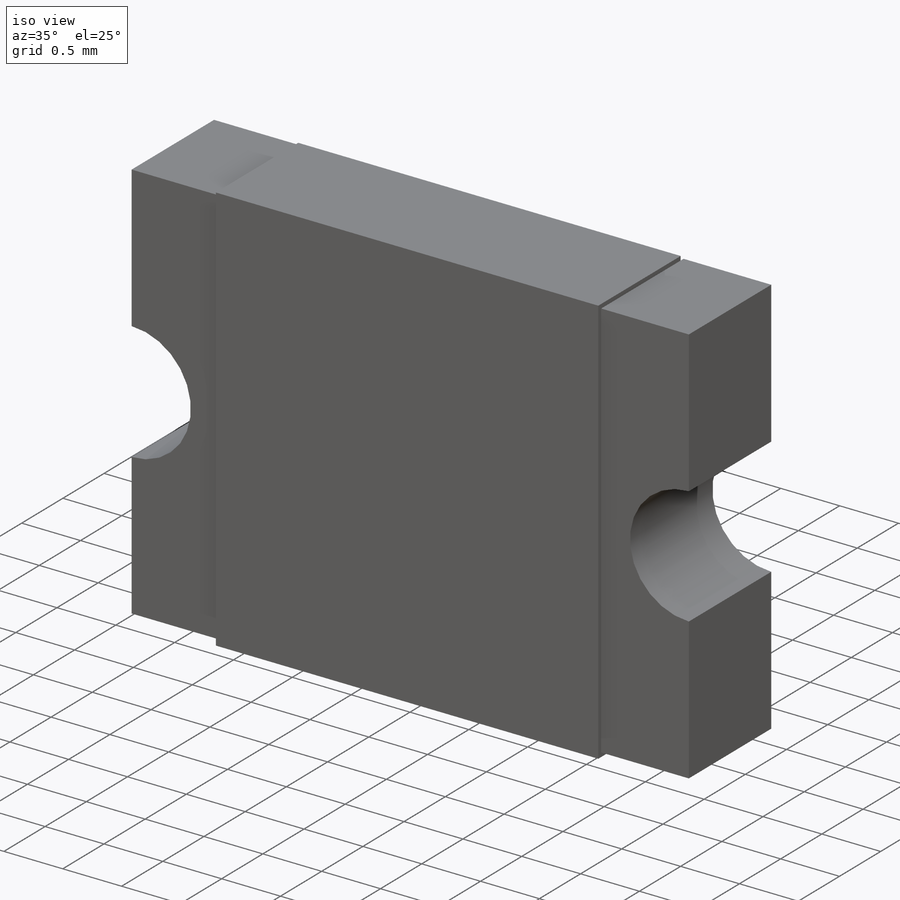
[diagram: iso view]
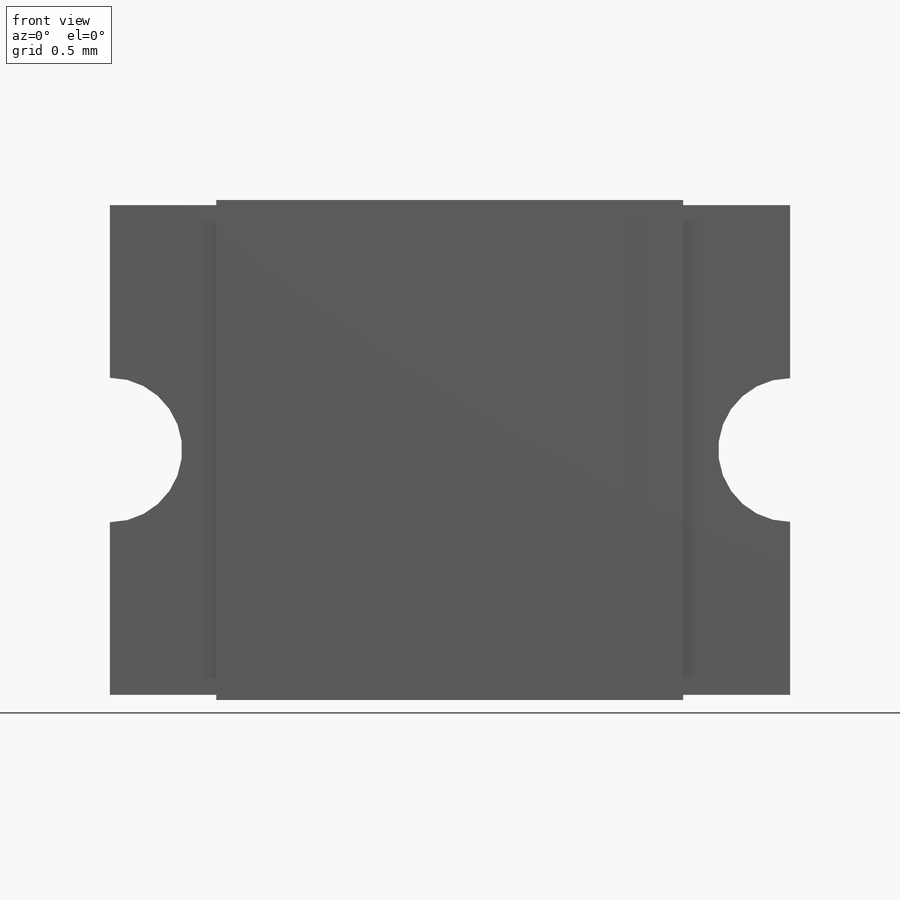
[diagram: front view]
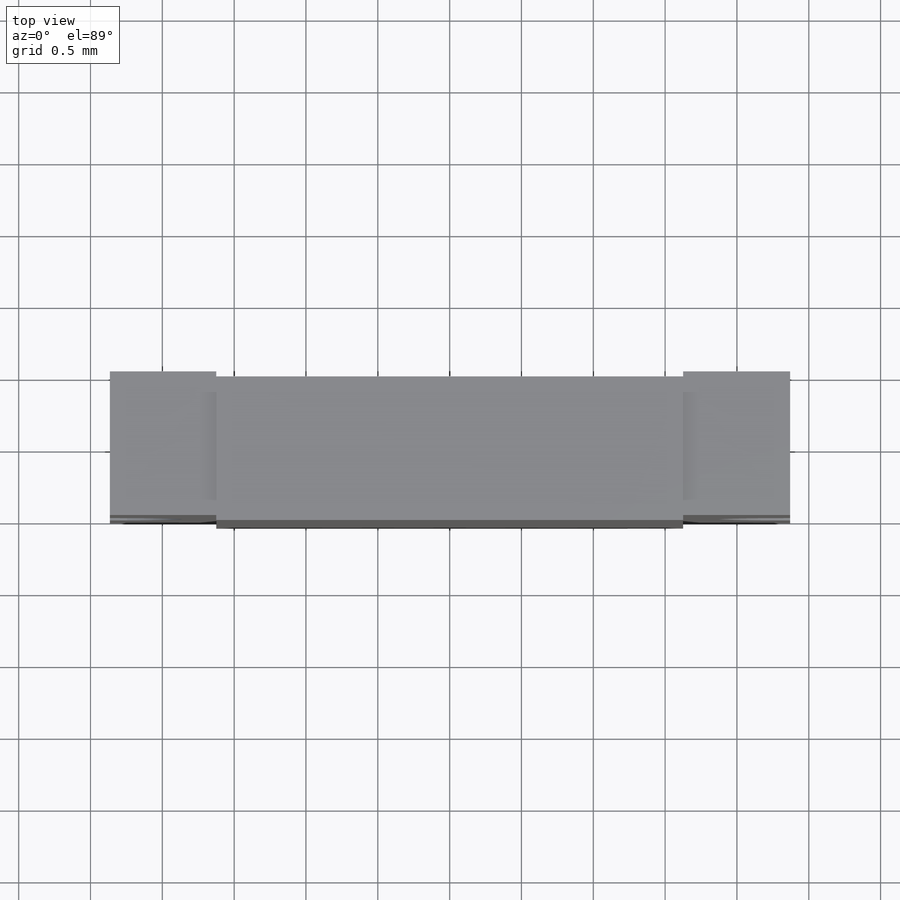
[diagram: top view]
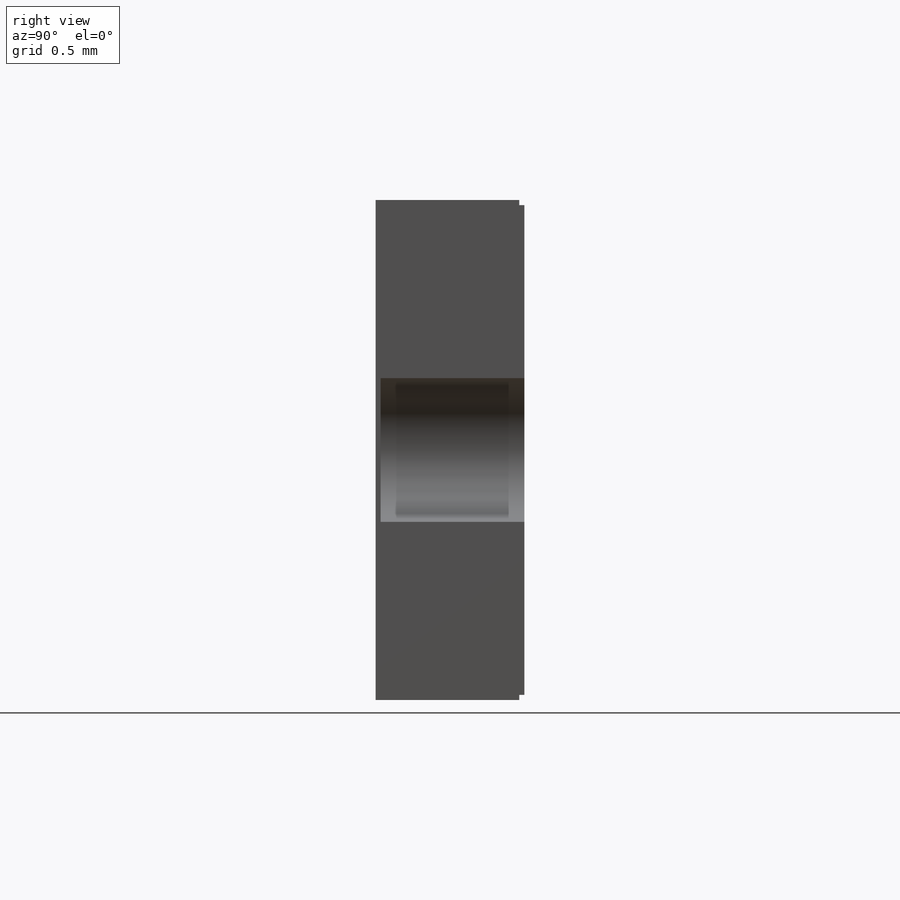
[diagram: right view]
SOLIDWORKS PART (.sldprt)
format: sldprt  version: not decoded by parser v0  size: 201,216 bytes
history: native  units: mm
features: sketch x8, extrude x4, cut_extrude x4, plane x3, material x1 (+10 scaffold rows collapsed)
feature tree (30):
  scaffold x10  (default folders/planes/origin — collapsed)
  material  "Material <not specified>"
  plane  "Plan de face"
  plane  "Plan de dessus"
  plane  "Plan de droite"
  sketch  "Esquisse1"  dims[D1=2.365mm D2=2.37mm D3=1.705mm D4=3.41mm]
  extrude  "Extrusion1"  Depth=1mm
  sketch  "Esquisse2"  dims[D1=0.75mm]
  cut_extrude  "Enlèv. mat.-Extru.1"  [1 undecoded]
  sketch  "Esquisse4"
  cut_extrude  "Enlèv. mat.-Extru.2"  [1 undecoded]
  sketch  "Esquisse8"  dims[D1=1.625mm D2=3.25mm]
  extrude  "Extrusion3"  Depth=0.035mm
  sketch  "Esquisse10"
  extrude  "Extrusion5"  Depth=0.035mm
  sketch  "Esquisse11"
  extrude  "Extrusion6"  Depth=0.035mm
  sketch  "Esquisse12"
  cut_extrude  "Enlèv. mat.-Extru.6"  Depth=0.035mm
  sketch  "Esquisse13"
  cut_extrude  "Enlèv. mat.-Extru.7"  Depth=0.0001mm
decode coverage: 9 of 16 modeling features carry decoded parameters
note: 2 parameter values undecoded
note: suppression state not decoded; provenance and decode notes live in map.json
